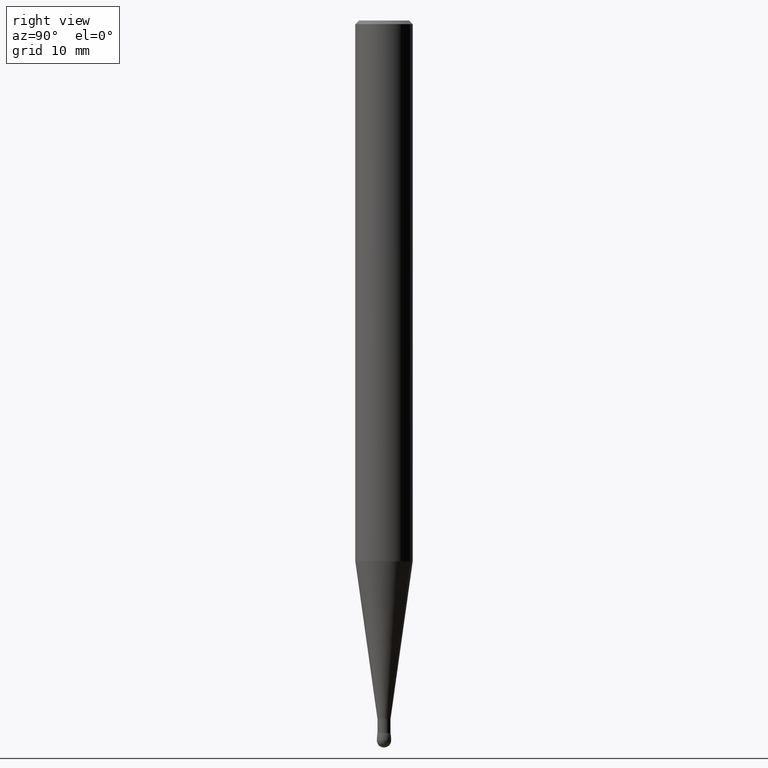
[diagram: clean part render]
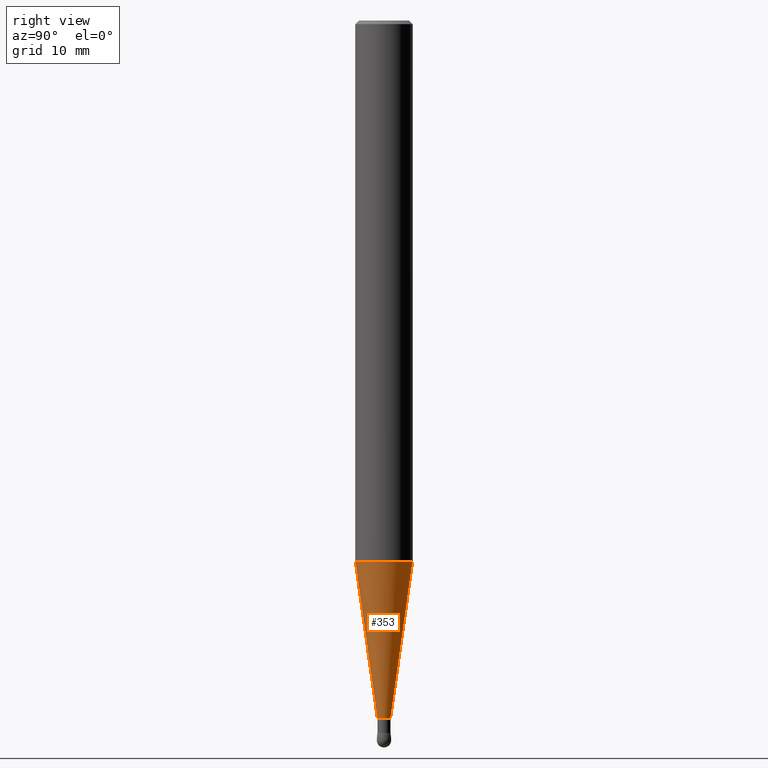
[diagram: same view with one face highlighted and labeled with its STEP entity id]
A machine part, right view. The second image highlights one B-rep face of the part: STEP entity #353.
In plain terms, the highlighted conical surface has half-angle 8 deg.
Its self-contained STEP definition (entity closure, byte-faithful):
#15 = AXIS2_PLACEMENT_3D ( 'NONE', #214, #250, #167 ) ;
#22 = LINE ( 'NONE', #56, #484 ) ;
#35 = EDGE_CURVE ( 'NONE', #200, #428, #116, .T. ) ;
#38 = ORIENTED_EDGE ( 'NONE', *, *, #304, .F. ) ;
#43 = CARTESIAN_POINT ( 'NONE',  ( -5.066139422660767511E-16, -0.02700000000001057110, -2.874000000000000110 ) ) ;
#49 = CARTESIAN_POINT ( 'NONE',  ( 5.440542639494698700E-29, -7.774965284413110621E-15, -2.225789818290806465 ) ) ;
#56 = CARTESIAN_POINT ( 'NONE',  ( -1.885399922974626539E-16, -0.02700000000001057110, -2.874000000000000110 ) ) ;
#57 = CARTESIAN_POINT ( 'NONE',  ( -8.246878922346912674E-16, -0.1181000000000074213, -2.225789818290806021 ) ) ;
#69 = ORIENTED_EDGE ( 'NONE', *, *, #268, .F. ) ;
#91 = DIRECTION ( 'NONE',  ( 2.444320031831448722E-29, -3.493126449101802453E-15, -1.000000000000000000 ) ) ;
#94 = CARTESIAN_POINT ( 'NONE',  ( 8.391509709327297689E-16, 0.1180999999999918504, -2.225789818290806910 ) ) ;
#102 = AXIS2_PLACEMENT_3D ( 'NONE', #297, #91, #141 ) ;
#116 = LINE ( 'NONE', #325, #179 ) ;
#141 = DIRECTION ( 'NONE',  ( 6.982962677686265133E-15, 1.000000000000000000, 0.000000000000000000 ) ) ;
#167 = DIRECTION ( 'NONE',  ( -6.982962677686265133E-15, -1.000000000000000000, 0.000000000000000000 ) ) ;
#179 = VECTOR ( 'NONE', #471, 39.37007874015748143 ) ;
#190 = CIRCLE ( 'NONE', #392, 0.1180999999999996358 ) ;
#199 = ORIENTED_EDGE ( 'NONE', *, *, #278, .T. ) ;
#200 = VERTEX_POINT ( 'NONE', #254 ) ;
#211 = DIRECTION ( 'NONE',  ( 6.982962677686265922E-15, 1.000000000000000000, -4.626330217890383536E-15 ) ) ;
#214 = CARTESIAN_POINT ( 'NONE',  ( 7.024975771483583061E-29, -1.003924541471858020E-14, -2.874000000000000110 ) ) ;
#233 = CONICAL_SURFACE ( 'NONE', #15, 0.02700000000000053399, 0.1396263401595466969 ) ;
#250 = DIRECTION ( 'NONE',  ( -2.444320031831448722E-29, 3.493126449101802453E-15, 1.000000000000000000 ) ) ;
#254 = CARTESIAN_POINT ( 'NONE',  ( 5.154987547940153247E-16, 0.02699999999999049341, -2.874000000000000110 ) ) ;
#268 = EDGE_CURVE ( 'NONE', #200, #361, #335, .T. ) ;
#278 = EDGE_CURVE ( 'NONE', #428, #493, #190, .T. ) ;
#297 = CARTESIAN_POINT ( 'NONE',  ( 7.024975771483583061E-29, -1.003924541471858020E-14, -2.874000000000000110 ) ) ;
#304 = EDGE_CURVE ( 'NONE', #361, #493, #22, .T. ) ;
#325 = CARTESIAN_POINT ( 'NONE',  ( 1.918465386553010530E-16, 0.02699999999999049341, -2.874000000000000110 ) ) ;
#335 = CIRCLE ( 'NONE', #102, 0.02700000000000053399 ) ;
#353 = ADVANCED_FACE ( 'NONE', ( #397 ), #233, .T. ) ;
#361 = VERTEX_POINT ( 'NONE', #43 ) ;
#392 = AXIS2_PLACEMENT_3D ( 'NONE', #49, #441, #211 ) ;
#397 = FACE_OUTER_BOUND ( 'NONE', #475, .T. ) ;
#398 = ORIENTED_EDGE ( 'NONE', *, *, #35, .T. ) ;
#409 = DIRECTION ( 'NONE',  ( -9.718405697420262401E-16, -0.1391731009600623015, 0.9902680687415706950 ) ) ;
#428 = VERTEX_POINT ( 'NONE', #94 ) ;
#441 = DIRECTION ( 'NONE',  ( 2.444320031831448722E-29, -3.493126449101802453E-15, -1.000000000000000000 ) ) ;
#471 = DIRECTION ( 'NONE',  ( 9.888843590037931308E-16, 0.1391731009600692404, 0.9902680687415698069 ) ) ;
#475 = EDGE_LOOP ( 'NONE', ( #69, #398, #199, #38 ) ) ;
#484 = VECTOR ( 'NONE', #409, 39.37007874015748854 ) ;
#493 = VERTEX_POINT ( 'NONE', #57 ) ;